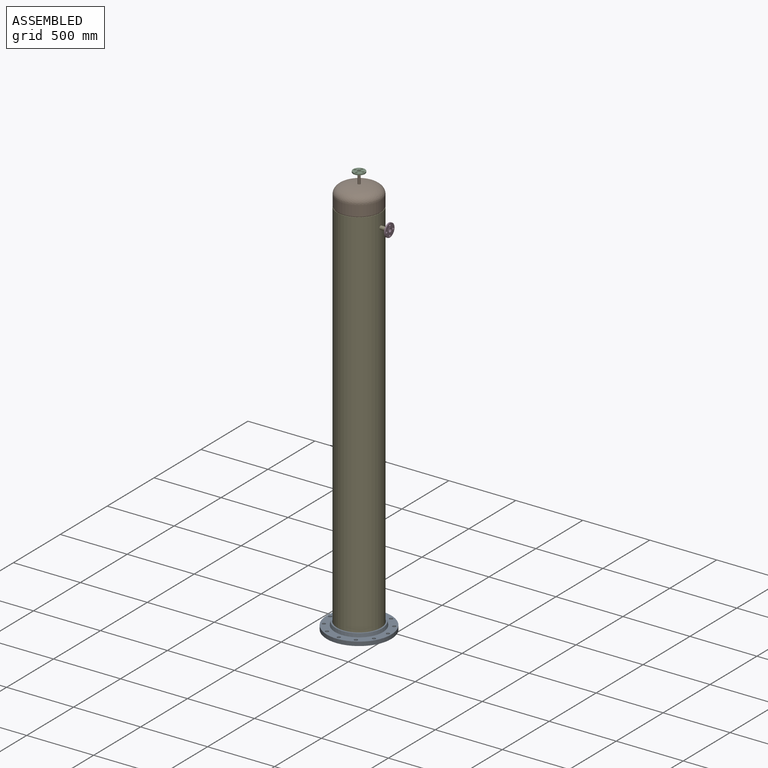
[diagram: assembled view]
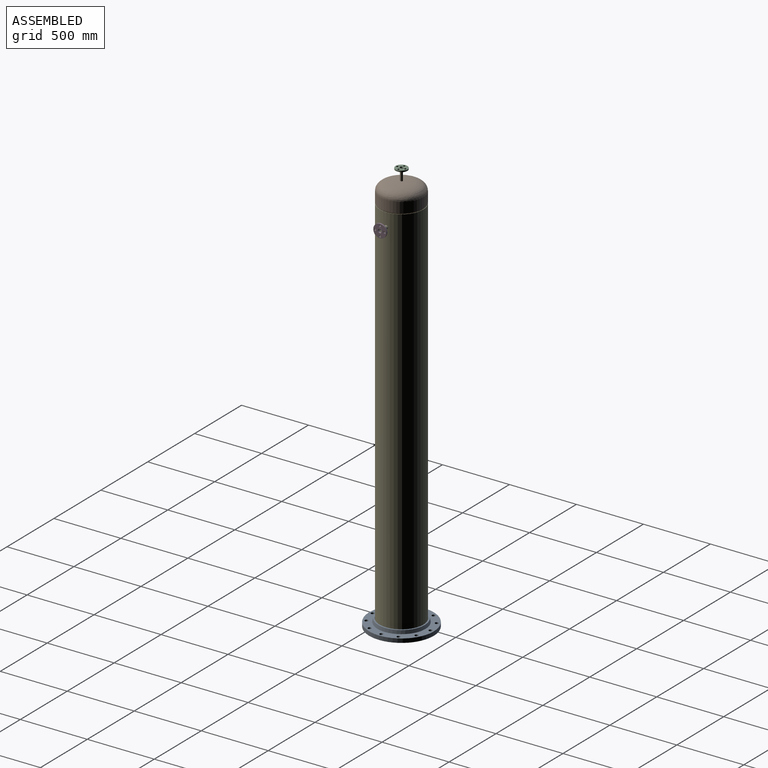
[diagram: assembled view, second angle]
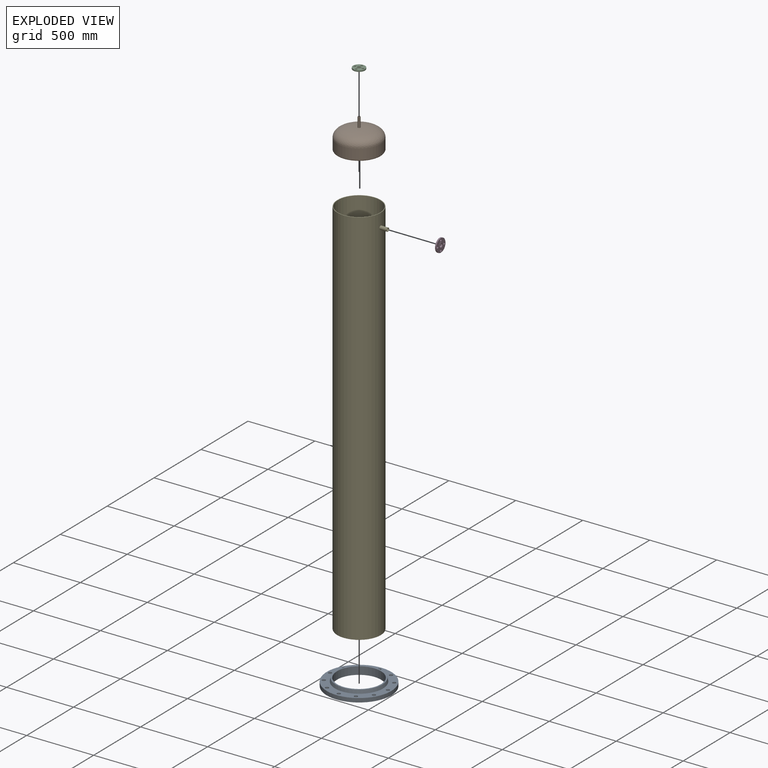
[diagram: exploded view]
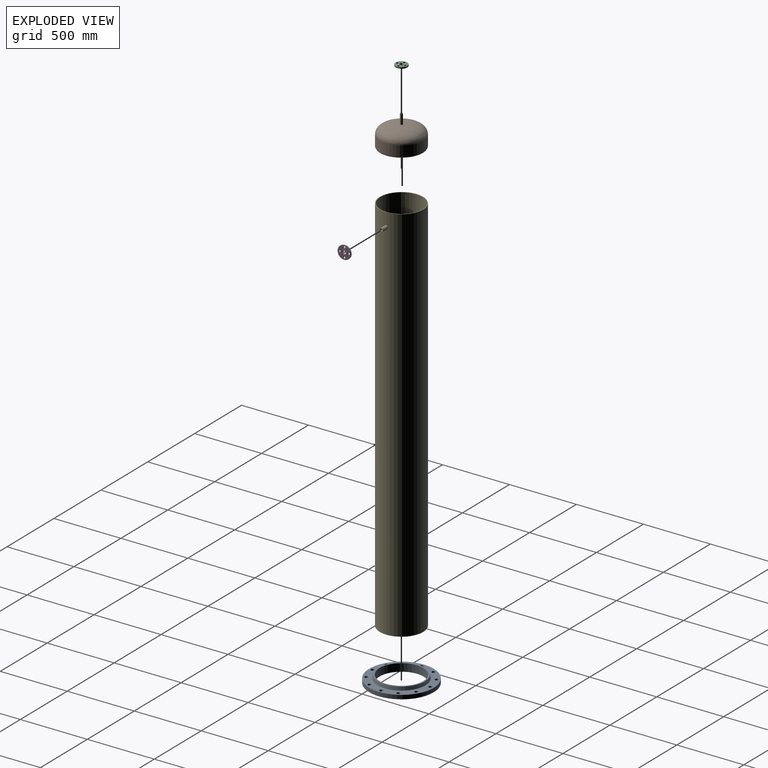
[diagram: exploded view, second angle]
ASSEMBLY  parts=5 mates=4
PART A: 20 faces, bbox 482x482x57.4 mm
  f0: cylinder r=12.7mm len=30mm, axis (0,0,-1), area 2393.9mm2, adj f13,f14
  f1: cylinder r=12.7mm len=30mm, axis (0,0,-1), area 2393.9mm2, adj f13,f14
  f2: cylinder r=12.7mm len=30mm, axis (0,0,-1), area 2393.9mm2, adj f13,f14
  f3: cylinder r=12.7mm len=30mm, axis (0,0,-1), area 2393.9mm2, adj f13,f14
  f4: cylinder r=12.7mm len=30mm, axis (0,0,-1), area 2393.9mm2, adj f13,f14
  f5: cylinder r=12.7mm len=30mm, axis (0,0,-1), area 2393.9mm2, adj f13,f14
  f6: cylinder r=12.7mm len=30mm, axis (0,0,-1), area 2393.9mm2, adj f13,f14
  f7: cylinder r=12.7mm len=30mm, axis (0,0,-1), area 2393.9mm2, adj f13,f14
  f8: cylinder r=12.7mm len=30mm, axis (0,0,-1), area 2393.9mm2, adj f13,f14
  f9: cylinder r=12.7mm len=30mm, axis (0,0,-1), area 2393.9mm2, adj f13,f14
  f10: cylinder r=12.7mm len=30mm, axis (0,0,-1), area 2393.9mm2, adj f13,f14
  f11: cylinder r=12.7mm len=30mm, axis (0,0,-1), area 2393.9mm2, adj f13,f14
  f12: cylinder r=241mm len=482mm, axis (0,0,-1), area 45427.4mm2, adj f13,f14
  f13: plane 482x482mm, normal (0,0,1), area 61777.9mm2, adj f0,f1,f2,f3,f4,f5,f6,f7
  f14: plane 482x482mm, normal (0,0,-1), area 75726.6mm2, adj f0,f1,f2,f3,f4,f5,f6,f7
  f15: cylinder r=164mm len=328mm, axis (0,0,-1), area 59147.4mm2, adj f17,f18
  f16: cylinder r=191mm len=382mm, axis (0,0,-1), area 2400.2mm2, adj f13,f17
  f17: plane 382x382mm, normal (0,0,1), area 30112.2mm2, adj f15,f16
  f18: plane 348x348mm, normal (0,0,-1), area 10618.6mm2, adj f15,f19
  f19: cone r=174mm half-angle=11.1deg, axis (0,0,1), area 28708.7mm2, adj f14,f18
PART B: 11 faces, bbox 323.8x323.8x225 mm
  f0: cylinder r=9.53mm len=73.06mm, axis (0,0,1), area 4372.6mm2, adj f3,f6
  f1: cylinder r=6.4mm len=80mm, axis (0,0,1), area 3217mm2, adj f3,f4
  f2: cylinder r=9.53mm len=19.05mm, axis (0,0,1), area 141.7mm2, adj f4,f5
  f3: plane 19.05x19.05mm, normal (0,0,-1), area 156.3mm2, adj f0,f1
  f4: plane 19.05x19.05mm, normal (0,0,1), area 156.3mm2, adj f1,f2
  f5: revolved ~314.66x314.66mm, area 208909.1mm2, adj f2,f8
  f6: revolved ~323.8x323.8mm, area 224544.1mm2, adj f0,f9
  f7: plane 317.63x317.63mm, normal (0,0,1), area 1473.4mm2, adj f8,f10
  f8: cylinder r=157.33mm len=314.66mm, axis (0,0,1), area 81794.5mm2, adj f5,f7
  f9: cylinder r=161.9mm len=323.8mm, axis (0,0,1), area 78863.6mm2, adj f6,f10
  f10: cone r=158.81mm half-angle=30.6deg, axis (0,0,-1), area 6107.2mm2, adj f7,f9
PART C: 12 faces, bbox 88.5x88.5x16.5 mm
  f0: cylinder r=8mm len=16mm, axis (0,0,-1), area 502.7mm2, adj f5,f6
  f1: cylinder r=8mm len=16mm, axis (0,0,-1), area 502.7mm2, adj f5,f6
  f2: cylinder r=8mm len=16mm, axis (0,0,-1), area 502.7mm2, adj f5,f6
  f3: cylinder r=8mm len=16mm, axis (0,0,-1), area 502.7mm2, adj f5,f6
  f4: cylinder r=44.25mm len=88.5mm, axis (0,0,-1), area 2780.3mm2, adj f5,f6
  f5: plane 88.5x88.5mm, normal (0,0,1), area 4465.8mm2, adj f0,f1,f2,f3,f4,f8
  f6: plane 88.5x88.5mm, normal (0,0,-1), area 4412.4mm2, adj f0,f1,f2,f3,f4,f11
  f7: cylinder r=11.25mm len=22.5mm, axis (0,0,-1), area 1166.3mm2, adj f9,f10
  f8: cylinder r=16.75mm len=33.5mm, axis (0,0,-1), area 210.5mm2, adj f5,f9
  f9: plane 33.5x33.5mm, normal (0,0,1), area 483.8mm2, adj f7,f8
  f10: plane 28.5x28.5mm, normal (0,0,-1), area 240.3mm2, adj f7,f11
  f11: cone r=14.25mm half-angle=33.7deg, axis (0,0,1), area 535.2mm2, adj f6,f10
PART D: 12 faces, bbox 98x98x16.5 mm
  f0: cylinder r=8mm len=16mm, axis (0,0,-1), area 502.7mm2, adj f5,f6
  f1: cylinder r=8mm len=16mm, axis (0,0,-1), area 502.7mm2, adj f5,f6
  f2: cylinder r=8mm len=16mm, axis (0,0,-1), area 502.7mm2, adj f5,f6
  f3: cylinder r=8mm len=16mm, axis (0,0,-1), area 502.7mm2, adj f5,f6
  f4: cylinder r=49mm len=98mm, axis (0,0,-1), area 3078.8mm2, adj f5,f6
  f5: plane 98x98mm, normal (0,0,1), area 5353.3mm2, adj f0,f1,f2,f3,f4,f8
  f6: plane 98x98mm, normal (0,0,-1), area 5482.1mm2, adj f0,f1,f2,f3,f4,f11
  f7: cylinder r=14mm len=28mm, axis (0,0,-1), area 1451.4mm2, adj f9,f10
  f8: cylinder r=21mm len=42mm, axis (0,0,-1), area 263.9mm2, adj f5,f9
  f9: plane 42x42mm, normal (0,0,1), area 769.7mm2, adj f7,f8
  f10: plane 34x34mm, normal (0,0,-1), area 292.2mm2, adj f7,f11
  f11: cone r=17mm half-angle=33.7deg, axis (0,0,1), area 628.7mm2, adj f6,f10
PART E: 11 faces, bbox 377.9x323.8x2850 mm
  f0: cylinder r=157.33mm len=2850mm, axis (0,0,-1), area 2816758.3mm2, adj f2,f3,f8
  f1: cylinder r=161.9mm len=2850mm, axis (0,0,-1), area 2898593.7mm2, adj f2,f3,f7
  f2: plane 323.8x323.8mm, normal (0,0,1), area 4583.2mm2, adj f0,f1
  f3: plane 323.8x323.8mm, normal (0,0,-1), area 4583.2mm2, adj f0,f1
  f4: cone r=0mm half-angle=59deg, axis (-1,0,0), area 2.7mm2, adj f6,f10
  f5: plane 26.67x26.67mm, normal (1,0,0), area 214.6mm2, adj f6,f7
  f6: cylinder r=10.46mm len=35.98mm, axis (-1,0,0), area 2365.7mm2, adj f4,f5
  f7: cylinder r=13.33mm len=54.65mm, axis (-1,0,0), area 4555.8mm2, adj f1,f5
  f8: cylinder r=13.33mm len=26.67mm, axis (-1,0,0), area 87.8mm2, adj f0,f9
  f9: plane 26.67x26.67mm, normal (-1,0,0), area 212.3mm2, adj f8,f10
  f10: cylinder r=10.5mm len=24mm, axis (-1,0,0), area 1583.4mm2, adj f4,f9
PLACE A rot(axis=(1,0,0),180deg) t=(814.81,165.46,25.14)mm
PLACE B rot(axis=(1,0,0),180deg) t=(814.81,165.46,2850)mm
PLACE C t=(814.81,165.46,3079.5)mm
PLACE D rot(axis=(0,1,0),90deg) t=(1035.31,165.46,2750)mm
PLACE E t=(814.81,165.46,0)mm
MATE cylindrical A.f15 <-> E.f0  axis (0,0,1) through (814.81,165.46,21.84)mm
MATE fastened E.f4 <-> D.f11  axis (-1,0,0) through (1030.81,165.46,2750)mm
MATE fastened C.f11 <-> B.f0  axis (0,0,-1) through (814.81,165.46,3075)mm
MATE fastened B.f8 <-> E.f0  axis (0,0,-1) through (814.81,165.46,2850)mm
